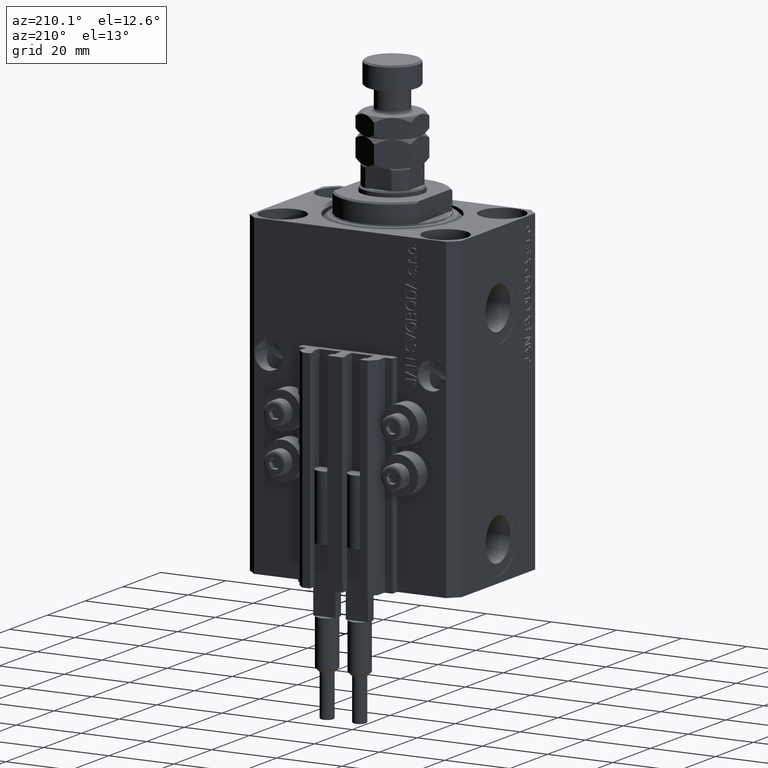
[diagram: clean part render]
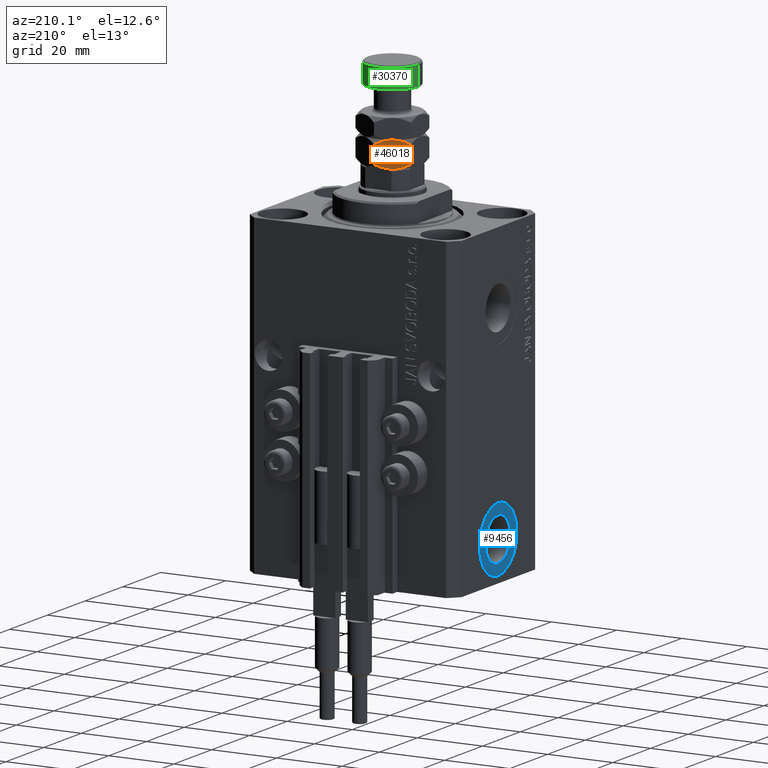
[diagram: same view with three faces highlighted in distinct colors, each labeled with its STEP entity id]
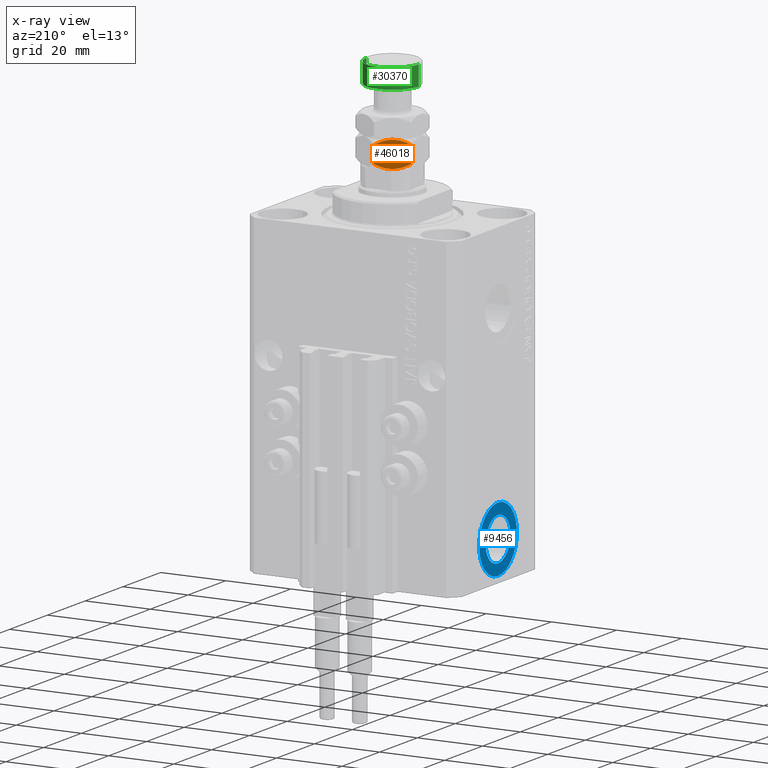
[diagram: x-ray of the same camera — body ghosted, the three highlighted faces saturated]
A machine part, auxiliary view with three faces highlighted in distinct colors.
The next image is the same camera in x-ray (body ghosted, the three faces saturated) — at least one of them is partly hidden behind the body in this view.
Their STEP definitions:

[orange] entity #46018 — the highlighted planar face has unit normal (0.5, -0.866, 0).
#202 = ORIENTED_EDGE ( 'NONE', *, *, #2737, .F. ) ;
#371 = CARTESIAN_POINT ( 'NONE',  ( -5.733718739115173157, 6.504590518737894733, 0.1608217079418319817 ) ) ;
#606 = VERTEX_POINT ( 'NONE', #6615 ) ;
#2033 = PLANE ( 'NONE',  #18350 ) ;
#2501 = CARTESIAN_POINT ( 'NONE',  ( -8.500000000000001776, 4.907477288111821601, 6.685045423776368345 ) ) ;
#2737 = EDGE_CURVE ( 'NONE', #46671, #45623, #42463, .T. ) ;
#3676 = CARTESIAN_POINT ( 'NONE',  ( -1.350892646810552433, 9.035016342941277756, 0.6009384127361191430 ) ) ;
#3894 = CARTESIAN_POINT ( 'NONE',  ( -8.500000000000001776, 4.907477288111821601, 1.314954576223634097 ) ) ;
#4143 = CARTESIAN_POINT ( 'NONE',  ( -4.622229978650556070, 7.146308853793382987, -2.126899730555548151E-15 ) ) ;
#5143 = VERTEX_POINT ( 'NONE', #7131 ) ;
#6615 = CARTESIAN_POINT ( 'NONE',  ( -2.175848833159079736E-16, 9.814954576223636096, 6.685045423776372786 ) ) ;
#6763 = ORIENTED_EDGE ( 'NONE', *, *, #46462, .F. ) ;
#7131 = CARTESIAN_POINT ( 'NONE',  ( -8.500000000000001776, 4.907477288111821601, 1.314954576223634097 ) ) ;
#7921 = CARTESIAN_POINT ( 'NONE',  ( -5.000029324638989081, 6.928186299687298266, 0.03373674959836554799 ) ) ;
#8363 = CARTESIAN_POINT ( 'NONE',  ( -1.348005192929855323, 9.036683415216572257, 7.396790787579877069 ) ) ;
#8910 = B_SPLINE_CURVE_WITH_KNOTS ( 'NONE', 3,
 ( #3894, #26959, #46785, #11926, #371, #7921, #4143, #34484 ),
 .UNSPECIFIED., .F., .F.,
 ( 4, 2, 2, 4 ),
 ( 2.544313836674336100E-07, 0.002543776790731957973, 0.003815537970406101317, 0.005087299150080244227 ),
 .UNSPECIFIED. ) ;
#9077 = DIRECTION ( 'NONE',  ( 0.8660254037844389297, 0.4999999999999995559, 0.000000000000000000 ) ) ;
#9146 = CARTESIAN_POINT ( 'NONE',  ( -4.249999999999994671, 7.361215932167727516, 8.000000000000000000 ) ) ;
#9340 = CARTESIAN_POINT ( 'NONE',  ( -2.175848833159079736E-16, 9.814954576223636096, 6.685045423776372786 ) ) ;
#10297 = B_SPLINE_CURVE_WITH_KNOTS ( 'NONE', 3,
 ( #14969, #22485, #26743, #3676, #18482, #30990 ),
 .UNSPECIFIED., .F., .F.,
 ( 4, 2, 4 ),
 ( 0.005087299150080244227, 0.007613005268011861781, 0.01013871138594347847 ),
 .UNSPECIFIED. ) ;
#10412 = LINE ( 'NONE', #25695, #16795 ) ;
#11926 = CARTESIAN_POINT ( 'NONE',  ( -6.092930036521920556, 6.297199779484152771, 0.2536240893246534123 ) ) ;
#12830 = FACE_OUTER_BOUND ( 'NONE', #38288, .T. ) ;
#12914 = EDGE_CURVE ( 'NONE', #606, #46671, #26370, .T. ) ;
#14880 = CARTESIAN_POINT ( 'NONE',  ( -7.834310611062749174, 5.291813236011422283, 7.069381371676069392 ) ) ;
#14969 = CARTESIAN_POINT ( 'NONE',  ( -4.249999999999996447, 7.361215932167731957, 0.000000000000000000 ) ) ;
#16795 = VECTOR ( 'NONE', #29710, 1000.000000000000000 ) ;
#16853 = CARTESIAN_POINT ( 'NONE',  ( -3.877770021349439045, 7.576123010542077374, 8.000000000000001776 ) ) ;
#17515 = VERTEX_POINT ( 'NONE', #18051 ) ;
#17856 = ORIENTED_EDGE ( 'NONE', *, *, #40586, .F. ) ;
#18051 = CARTESIAN_POINT ( 'NONE',  ( 1.960053746949402388E-16, 9.814954576223636096, 1.314954576223628546 ) ) ;
#18350 = AXIS2_PLACEMENT_3D ( 'NONE', #28115, #43438, #9077 ) ;
#18482 = CARTESIAN_POINT ( 'NONE',  ( -0.6656893889372521578, 9.430618628324037189, 0.9306186283239277213 ) ) ;
#18746 = CARTESIAN_POINT ( 'NONE',  ( -4.249999999999996447, 7.361215932167731957, 0.000000000000000000 ) ) ;
#20361 = CARTESIAN_POINT ( 'NONE',  ( -2.407069963478076779, 8.425232084851307590, 7.746375910675348919 ) ) ;
#21472 = VECTOR ( 'NONE', #27520, 1000.000000000000000 ) ;
#22485 = CARTESIAN_POINT ( 'NONE',  ( -3.510754653168324246, 7.788019432158175270, -2.226002585384300502E-15 ) ) ;
#23880 = CARTESIAN_POINT ( 'NONE',  ( -2.766281260884825510, 8.217841345597568292, 7.839178292058173625 ) ) ;
#25695 = CARTESIAN_POINT ( 'NONE',  ( 0.000000000000000000, 9.814954576223636096, 8.000000000000000000 ) ) ;
#25925 = CARTESIAN_POINT ( 'NONE',  ( -5.715920793973915615, 6.514866167156221799, 7.869479712616790579 ) ) ;
#26370 = B_SPLINE_CURVE_WITH_KNOTS ( 'NONE', 3,
 ( #9340, #28142, #8363, #20361, #23880, #35175, #16853, #32162 ),
 .UNSPECIFIED., .F., .F.,
 ( 4, 2, 2, 4 ),
 ( 2.544313836662431582E-07, 0.002543776790731950600, 0.003815537970406090908, 0.005087299150080232084 ),
 .UNSPECIFIED. ) ;
#26743 = CARTESIAN_POINT ( 'NONE',  ( -2.784079206026081721, 8.207565697179243003, 0.1305202873832130295 ) ) ;
#26959 = CARTESIAN_POINT ( 'NONE',  ( -7.833539178395718672, 5.292258622869395523, 0.9301732414660626169 ) ) ;
#27299 = VERTEX_POINT ( 'NONE', #18746 ) ;
#27520 = DIRECTION ( 'NONE',  ( -0.000000000000000000, -0.000000000000000000, -1.000000000000000000 ) ) ;
#27993 = ORIENTED_EDGE ( 'NONE', *, *, #12914, .F. ) ;
#28115 = CARTESIAN_POINT ( 'NONE',  ( 0.000000000000000000, 9.814954576223636096, 8.000000000000000000 ) ) ;
#28142 = CARTESIAN_POINT ( 'NONE',  ( -0.6664608216042845479, 9.430173241466064837, 7.069826758533944044 ) ) ;
#29710 = DIRECTION ( 'NONE',  ( -0.000000000000000000, -0.000000000000000000, -1.000000000000000000 ) ) ;
#29999 = ORIENTED_EDGE ( 'NONE', *, *, #33176, .F. ) ;
#30416 = CARTESIAN_POINT ( 'NONE',  ( -7.149107353189443792, 5.687415521394179940, 7.399061587263880746 ) ) ;
#30990 = CARTESIAN_POINT ( 'NONE',  ( 1.960053746949402388E-16, 9.814954576223636096, 1.314954576223628546 ) ) ;
#32162 = CARTESIAN_POINT ( 'NONE',  ( -4.249999999999994671, 7.361215932167727516, 8.000000000000000000 ) ) ;
#32715 = ORIENTED_EDGE ( 'NONE', *, *, #48727, .T. ) ;
#33176 = EDGE_CURVE ( 'NONE', #27299, #17515, #10297, .T. ) ;
#34484 = CARTESIAN_POINT ( 'NONE',  ( -4.249999999999996447, 7.361215932167731957, 0.000000000000000000 ) ) ;
#34797 = CARTESIAN_POINT ( 'NONE',  ( -8.500000000000001776, 4.907477288111821601, 8.000000000000000000 ) ) ;
#35175 = CARTESIAN_POINT ( 'NONE',  ( -3.499970675361005590, 7.794245564648163871, 7.966263250401637741 ) ) ;
#38288 = EDGE_LOOP ( 'NONE', ( #6763, #17856, #202, #27993, #32715, #29999 ) ) ;
#40586 = EDGE_CURVE ( 'NONE', #45623, #5143, #46114, .T. ) ;
#41238 = CARTESIAN_POINT ( 'NONE',  ( -8.500000000000001776, 4.907477288111821601, 6.685045423776368345 ) ) ;
#41974 = CARTESIAN_POINT ( 'NONE',  ( -4.249999999999994671, 7.361215932167727516, 8.000000000000000000 ) ) ;
#42463 = B_SPLINE_CURVE_WITH_KNOTS ( 'NONE', 3,
 ( #41974, #49278, #25925, #30416, #14880, #41238 ),
 .UNSPECIFIED., .F., .F.,
 ( 4, 2, 4 ),
 ( 0.005087299150080232084, 0.007613005268011854842, 0.01013871138594347847 ),
 .UNSPECIFIED. ) ;
#43438 = DIRECTION ( 'NONE',  ( 0.4999999999999995559, -0.8660254037844389297, 0.000000000000000000 ) ) ;
#45623 = VERTEX_POINT ( 'NONE', #2501 ) ;
#46018 = ADVANCED_FACE ( 'NONE', ( #12830 ), #2033, .F. ) ;
#46114 = LINE ( 'NONE', #34797, #21472 ) ;
#46462 = EDGE_CURVE ( 'NONE', #5143, #27299, #8910, .T. ) ;
#46671 = VERTEX_POINT ( 'NONE', #9146 ) ;
#46785 = CARTESIAN_POINT ( 'NONE',  ( -7.151994807070144233, 5.685748449118888104, 0.6032092124201268168 ) ) ;
#48727 = EDGE_CURVE ( 'NONE', #606, #17515, #10412, .T. ) ;
#49278 = CARTESIAN_POINT ( 'NONE',  ( -4.989245346831672201, 6.934412432177284202, 8.000000000000005329 ) ) ;

[blue] entity #9456 — the highlighted planar face has unit normal (-1, 0, 0).
#70 = DIRECTION ( 'NONE',  ( 0.000000000000000000, 0.000000000000000000, 1.000000000000000000 ) ) ;
#2766 = DIRECTION ( 'NONE',  ( -1.000000000000000000, 0.000000000000000000, 0.000000000000000000 ) ) ;
#6339 = ORIENTED_EDGE ( 'NONE', *, *, #41248, .F. ) ;
#7697 = CARTESIAN_POINT ( 'NONE',  ( -32.39999999999650271, -9.184850993605150311E-15, -95.00000000000000000 ) ) ;
#9456 = ADVANCED_FACE ( 'NONE', ( #33107, #37367 ), #37614, .T. ) ;
#10379 = AXIS2_PLACEMENT_3D ( 'NONE', #48215, #14831, #48719 ) ;
#12501 = DIRECTION ( 'NONE',  ( -1.000000000000000000, 0.000000000000000000, 0.000000000000000000 ) ) ;
#14551 = EDGE_LOOP ( 'NONE', ( #35309, #29521 ) ) ;
#14831 = DIRECTION ( 'NONE',  ( -1.000000000000000000, 0.000000000000000000, 0.000000000000000000 ) ) ;
#15604 = CIRCLE ( 'NONE', #43657, 9.999999999999994671 ) ;
#16764 = AXIS2_PLACEMENT_3D ( 'NONE', #40436, #43946, #47719 ) ;
#18388 = CIRCLE ( 'NONE', #16764, 6.580000000000002736 ) ;
#21820 = VERTEX_POINT ( 'NONE', #7697 ) ;
#22237 = EDGE_LOOP ( 'NONE', ( #6339, #24206 ) ) ;
#22419 = EDGE_CURVE ( 'NONE', #38064, #21820, #15604, .T. ) ;
#24206 = ORIENTED_EDGE ( 'NONE', *, *, #47767, .F. ) ;
#25524 = CIRCLE ( 'NONE', #29497, 6.580000000000002736 ) ;
#25644 = AXIS2_PLACEMENT_3D ( 'NONE', #25833, #2766, #33605 ) ;
#25833 = CARTESIAN_POINT ( 'NONE',  ( -32.39999999999650271, -1.040949779275250179E-14, -85.00000000000000000 ) ) ;
#26474 = CARTESIAN_POINT ( 'NONE',  ( -32.39999999999650271, -9.603680198913542751E-15, -91.58000000000001251 ) ) ;
#28528 = DIRECTION ( 'NONE',  ( 0.000000000000000000, 0.000000000000000000, 1.000000000000000000 ) ) ;
#29497 = AXIS2_PLACEMENT_3D ( 'NONE', #34426, #49046, #70 ) ;
#29521 = ORIENTED_EDGE ( 'NONE', *, *, #47075, .T. ) ;
#31792 = CARTESIAN_POINT ( 'NONE',  ( -32.39999999999650271, -1.040949779275250179E-14, -85.00000000000000000 ) ) ;
#32811 = CIRCLE ( 'NONE', #10379, 9.999999999999994671 ) ;
#33107 = FACE_BOUND ( 'NONE', #22237, .T. ) ;
#33605 = DIRECTION ( 'NONE',  ( 0.000000000000000000, 0.000000000000000000, 1.000000000000000000 ) ) ;
#34426 = CARTESIAN_POINT ( 'NONE',  ( -32.39999999999650271, -1.040949779275250179E-14, -85.00000000000000000 ) ) ;
#35309 = ORIENTED_EDGE ( 'NONE', *, *, #22419, .T. ) ;
#37367 = FACE_OUTER_BOUND ( 'NONE', #14551, .T. ) ;
#37614 = PLANE ( 'NONE',  #25644 ) ;
#37980 = VERTEX_POINT ( 'NONE', #48807 ) ;
#38064 = VERTEX_POINT ( 'NONE', #42004 ) ;
#40436 = CARTESIAN_POINT ( 'NONE',  ( -32.39999999999650271, -1.040949779275250179E-14, -85.00000000000000000 ) ) ;
#41248 = EDGE_CURVE ( 'NONE', #37980, #46369, #25524, .T. ) ;
#42004 = CARTESIAN_POINT ( 'NONE',  ( -32.39999999999650271, -1.040949779275250179E-14, -75.00000000000001421 ) ) ;
#43657 = AXIS2_PLACEMENT_3D ( 'NONE', #31792, #12501, #28528 ) ;
#43946 = DIRECTION ( 'NONE',  ( -1.000000000000000000, 0.000000000000000000, 0.000000000000000000 ) ) ;
#46369 = VERTEX_POINT ( 'NONE', #26474 ) ;
#47075 = EDGE_CURVE ( 'NONE', #21820, #38064, #32811, .T. ) ;
#47719 = DIRECTION ( 'NONE',  ( 0.000000000000000000, 0.000000000000000000, 1.000000000000000000 ) ) ;
#47767 = EDGE_CURVE ( 'NONE', #46369, #37980, #18388, .T. ) ;
#48215 = CARTESIAN_POINT ( 'NONE',  ( -32.39999999999650271, -1.040949779275250179E-14, -85.00000000000000000 ) ) ;
#48719 = DIRECTION ( 'NONE',  ( 0.000000000000000000, 0.000000000000000000, 1.000000000000000000 ) ) ;
#48807 = CARTESIAN_POINT ( 'NONE',  ( -32.39999999999650271, -1.040949779275250179E-14, -78.42000000000000171 ) ) ;
#49046 = DIRECTION ( 'NONE',  ( -1.000000000000000000, 0.000000000000000000, 0.000000000000000000 ) ) ;

[green] entity #30370 — the highlighted cylindrical surface (edge-blend (fillet) strip) has radius 8 mm, axis along (-0, -0, -1).
#406 = CARTESIAN_POINT ( 'NONE',  ( 0.000000000000000000, 0.000000000000000000, 28.00000000000000000 ) ) ;
#3490 = DIRECTION ( 'NONE',  ( -0.000000000000000000, -0.000000000000000000, 1.000000000000000000 ) ) ;
#4222 = CARTESIAN_POINT ( 'NONE',  ( 0.000000000000000000, 0.000000000000000000, 21.50000000000000711 ) ) ;
#4589 = VERTEX_POINT ( 'NONE', #8957 ) ;
#4881 = EDGE_CURVE ( 'NONE', #4589, #42118, #15437, .T. ) ;
#7715 = FACE_OUTER_BOUND ( 'NONE', #32880, .T. ) ;
#8957 = CARTESIAN_POINT ( 'NONE',  ( -8.000000000000000000, 0.000000000000000000, 27.50000000000000000 ) ) ;
#9197 = LINE ( 'NONE', #24471, #22932 ) ;
#11505 = ORIENTED_EDGE ( 'NONE', *, *, #19992, .T. ) ;
#12218 = DIRECTION ( 'NONE',  ( -0.000000000000000000, -0.000000000000000000, -1.000000000000000000 ) ) ;
#12327 = ORIENTED_EDGE ( 'NONE', *, *, #4881, .F. ) ;
#15437 = LINE ( 'NONE', #34980, #33746 ) ;
#16403 = DIRECTION ( 'NONE',  ( -0.000000000000000000, -0.000000000000000000, -1.000000000000000000 ) ) ;
#17765 = DIRECTION ( 'NONE',  ( 1.000000000000000000, 0.000000000000000000, 0.000000000000000000 ) ) ;
#19707 = DIRECTION ( 'NONE',  ( -1.000000000000000000, 0.000000000000000000, 0.000000000000000000 ) ) ;
#19992 = EDGE_CURVE ( 'NONE', #4589, #47422, #40337, .T. ) ;
#20112 = CARTESIAN_POINT ( 'NONE',  ( -8.000000000000000000, 0.000000000000000000, 21.50000000000000711 ) ) ;
#22932 = VECTOR ( 'NONE', #39783, 1000.000000000000000 ) ;
#24471 = CARTESIAN_POINT ( 'NONE',  ( 8.000000000000000000, 9.797174393178825657E-16, 28.00000000000000000 ) ) ;
#25008 = ORIENTED_EDGE ( 'NONE', *, *, #37034, .T. ) ;
#26120 = CARTESIAN_POINT ( 'NONE',  ( 8.000000000000000000, 9.797174393178825657E-16, 21.50000000000000711 ) ) ;
#30370 = ADVANCED_FACE ( 'NONE', ( #7715 ), #49622, .T. ) ;
#31288 = DIRECTION ( 'NONE',  ( 1.000000000000000000, 0.000000000000000000, 0.000000000000000000 ) ) ;
#31789 = ORIENTED_EDGE ( 'NONE', *, *, #48383, .T. ) ;
#31814 = CARTESIAN_POINT ( 'NONE',  ( 0.000000000000000000, 0.000000000000000000, 27.50000000000000000 ) ) ;
#32880 = EDGE_LOOP ( 'NONE', ( #11505, #25008, #31789, #12327 ) ) ;
#33746 = VECTOR ( 'NONE', #16403, 1000.000000000000000 ) ;
#34980 = CARTESIAN_POINT ( 'NONE',  ( -8.000000000000000000, 0.000000000000000000, 28.00000000000000000 ) ) ;
#37034 = EDGE_CURVE ( 'NONE', #47422, #47869, #9197, .T. ) ;
#38432 = AXIS2_PLACEMENT_3D ( 'NONE', #4222, #3490, #31288 ) ;
#38575 = CARTESIAN_POINT ( 'NONE',  ( 8.000000000000000000, 9.797174393178825657E-16, 27.50000000000000000 ) ) ;
#39537 = AXIS2_PLACEMENT_3D ( 'NONE', #31814, #47141, #17765 ) ;
#39783 = DIRECTION ( 'NONE',  ( -0.000000000000000000, -0.000000000000000000, -1.000000000000000000 ) ) ;
#40337 = CIRCLE ( 'NONE', #39537, 8.000000000000000000 ) ;
#40863 = CIRCLE ( 'NONE', #38432, 8.000000000000000000 ) ;
#42118 = VERTEX_POINT ( 'NONE', #20112 ) ;
#43800 = AXIS2_PLACEMENT_3D ( 'NONE', #406, #12218, #19707 ) ;
#47141 = DIRECTION ( 'NONE',  ( 0.000000000000000000, 0.000000000000000000, -1.000000000000000000 ) ) ;
#47422 = VERTEX_POINT ( 'NONE', #38575 ) ;
#47869 = VERTEX_POINT ( 'NONE', #26120 ) ;
#48383 = EDGE_CURVE ( 'NONE', #47869, #42118, #40863, .T. ) ;
#49622 = CYLINDRICAL_SURFACE ( 'NONE', #43800, 8.000000000000000000 ) ;